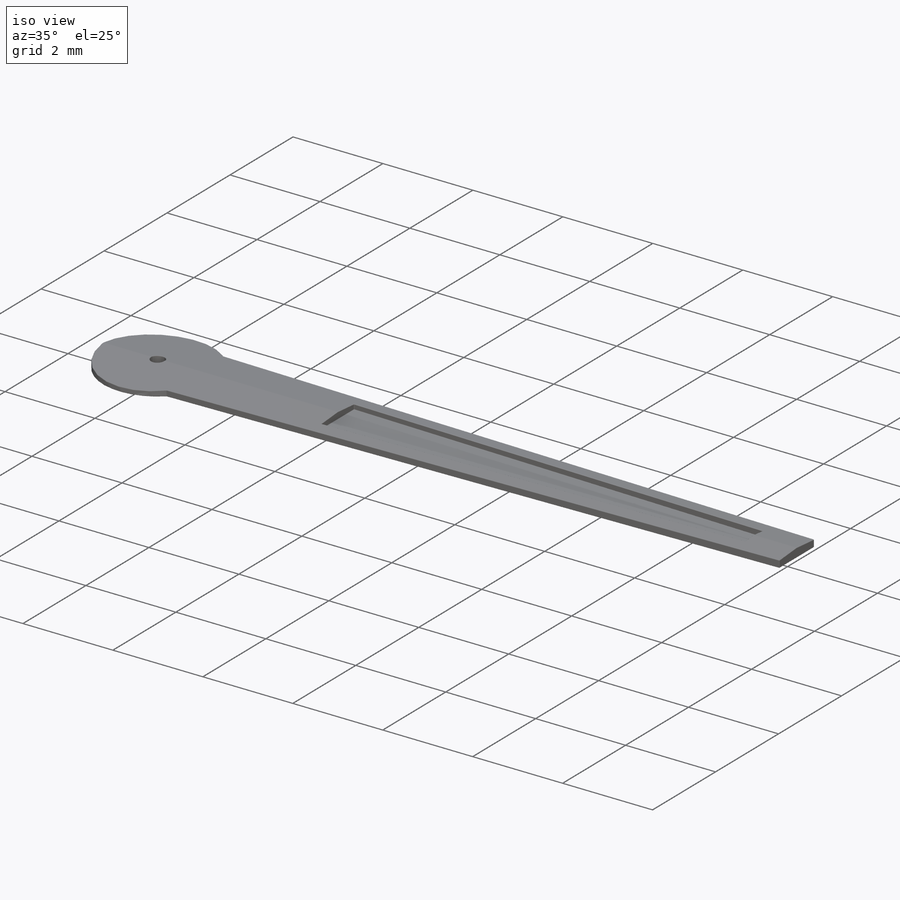
[diagram: iso view]
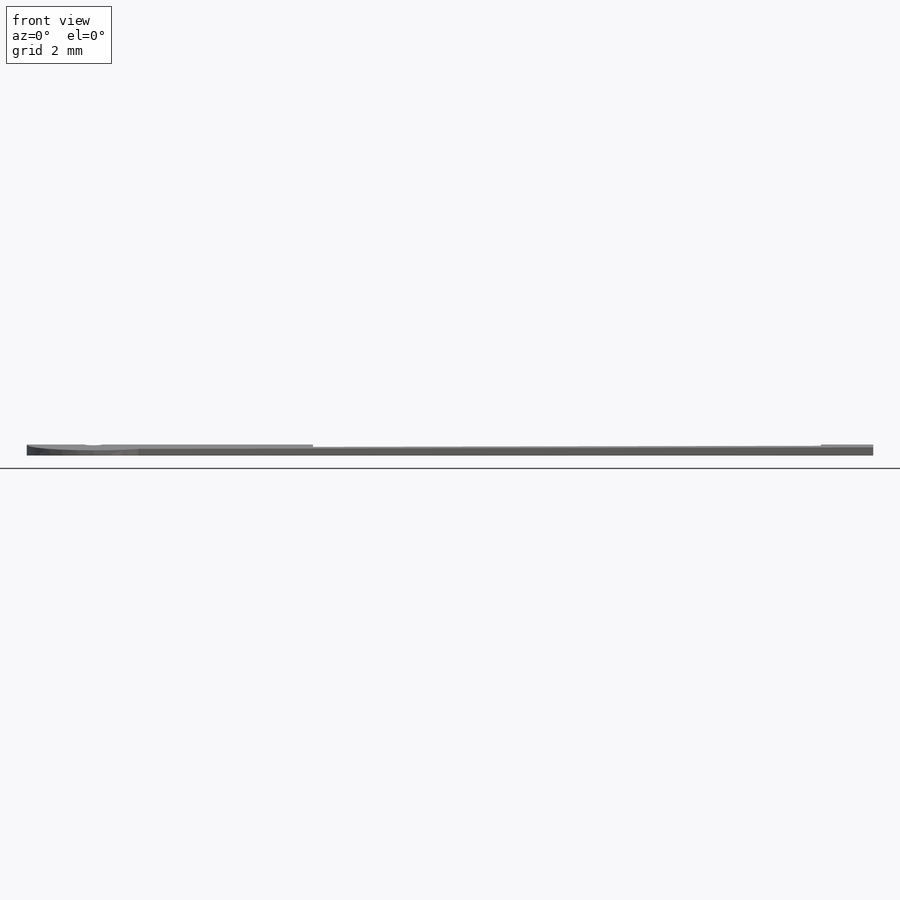
[diagram: front view]
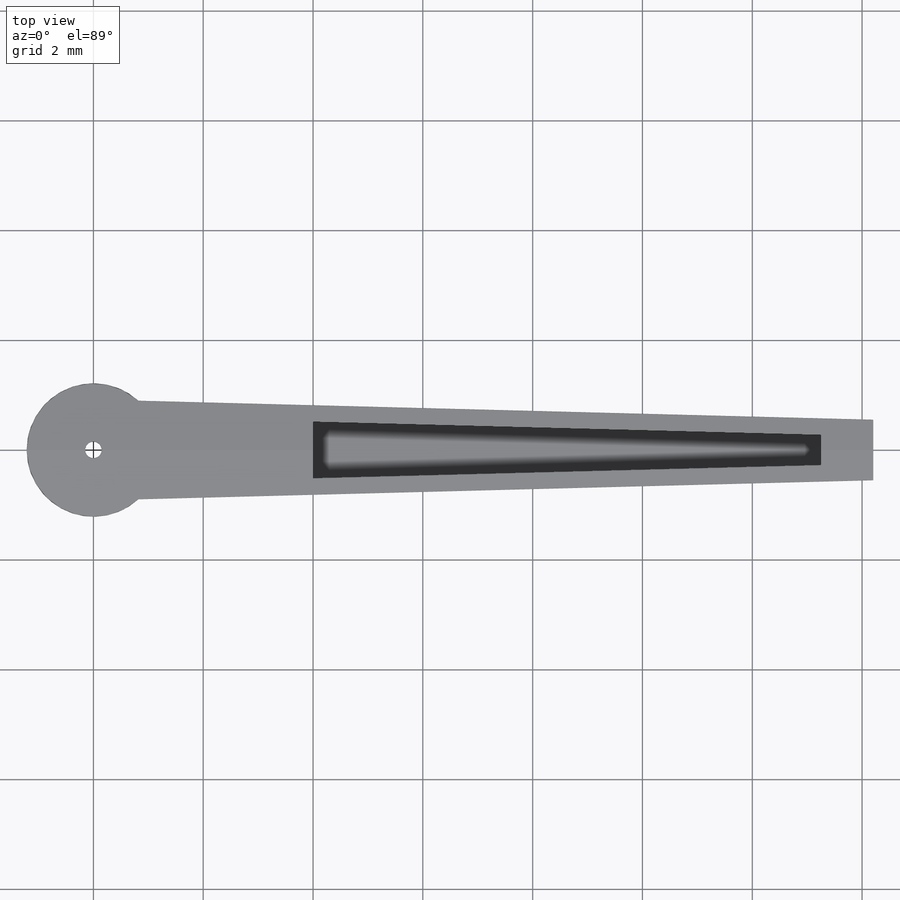
[diagram: top view]
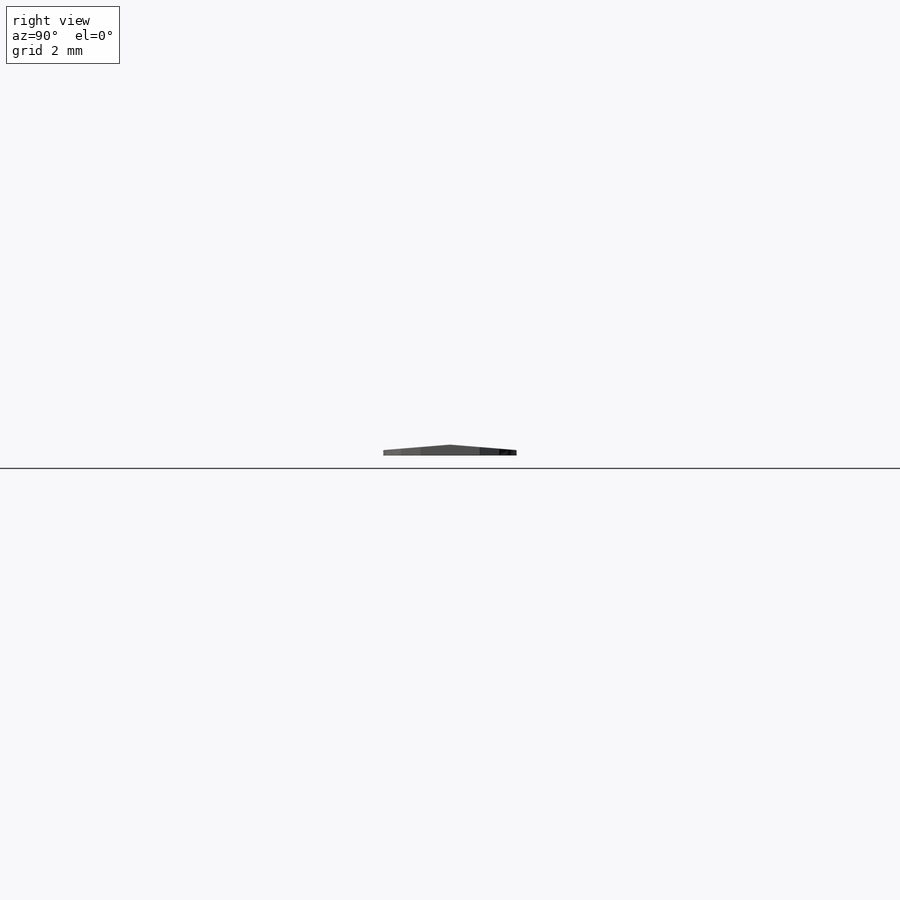
[diagram: right view]
SOLIDWORKS PART (.sldprt)
format: sldprt  version: not decoded by parser v0  size: 260,096 bytes
history: native  units: mm
features: sketch x4, extrude x2, material x1, plane x1, cut_extrude x1, fillet x1 (+11 scaffold rows collapsed)
feature tree (21):
  scaffold x11  (default folders/planes/origin — collapsed)
  material  "Material <not specified>"
  sketch  "Sketch1"
  sketch  "Sketch2"  dims[c1.D1=0.55mm c1.D2=0.55mm c1.D3=0.9mm c1.D4=0.7mm c1.D5=0.9mm c1.D6=0.7mm c2.D5=4.0mm c2.D6=13.25mm c2.D3=0.3mm c2.D4=0.3mm]
  extrude  "Boss-Extrude1"  Depth=0.2mm
  plane  "Plane1"
  sketch  "Sketch4"
  extrude  "Boss-Extrude2"  Depth=0.05mm
  sketch  "Sketch5"
  cut_extrude  "Cut-Extrude1"  Depth=40.05mm
  fillet  "Fillet1"  Radius=0.01mm
decode coverage: 5 of 8 modeling features carry decoded parameters
note: suppression state not decoded; provenance and decode notes live in map.json
